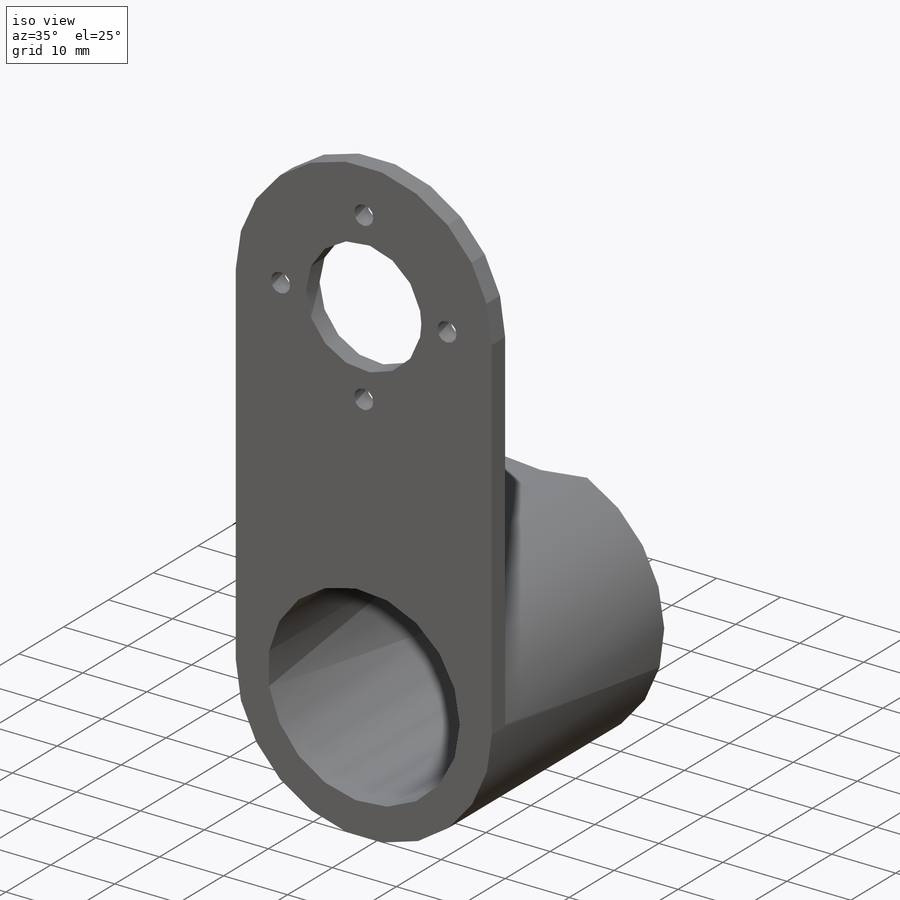
[diagram: iso view]
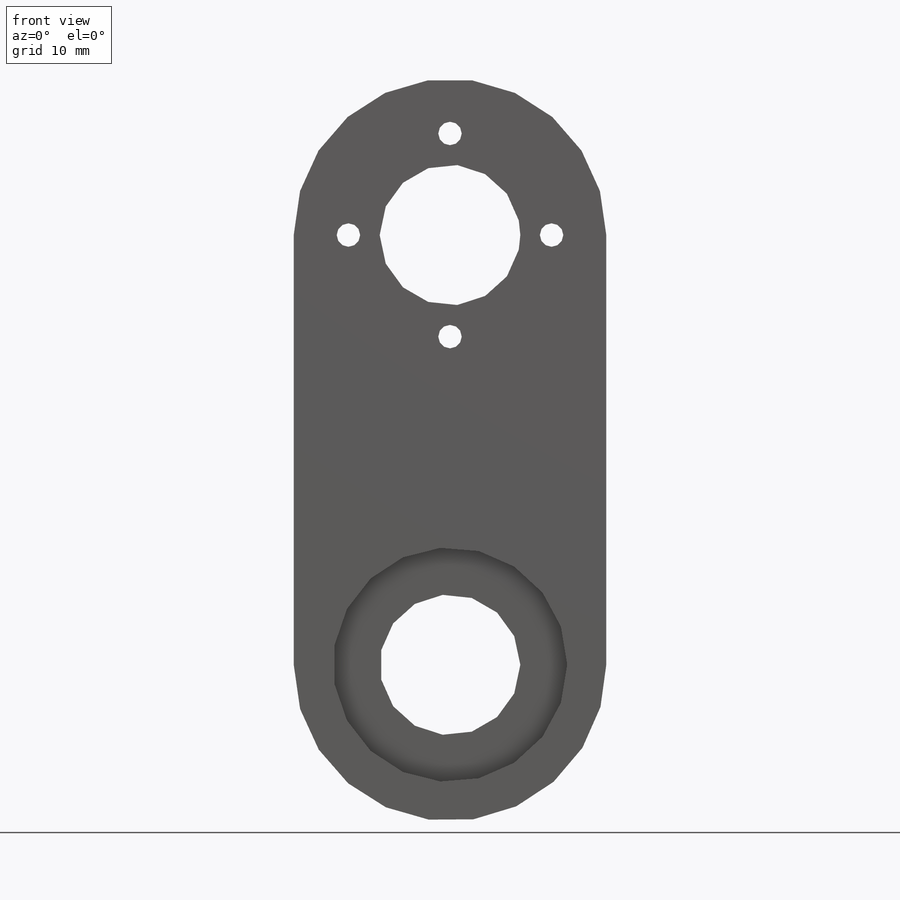
[diagram: front view]
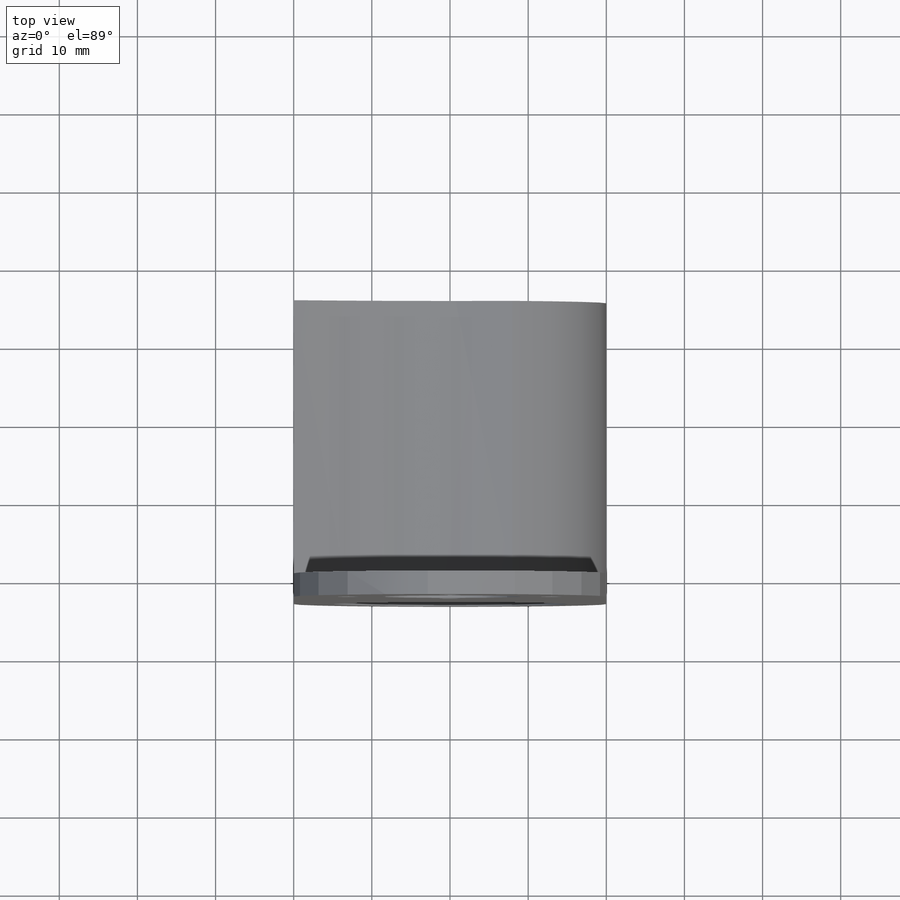
[diagram: top view]
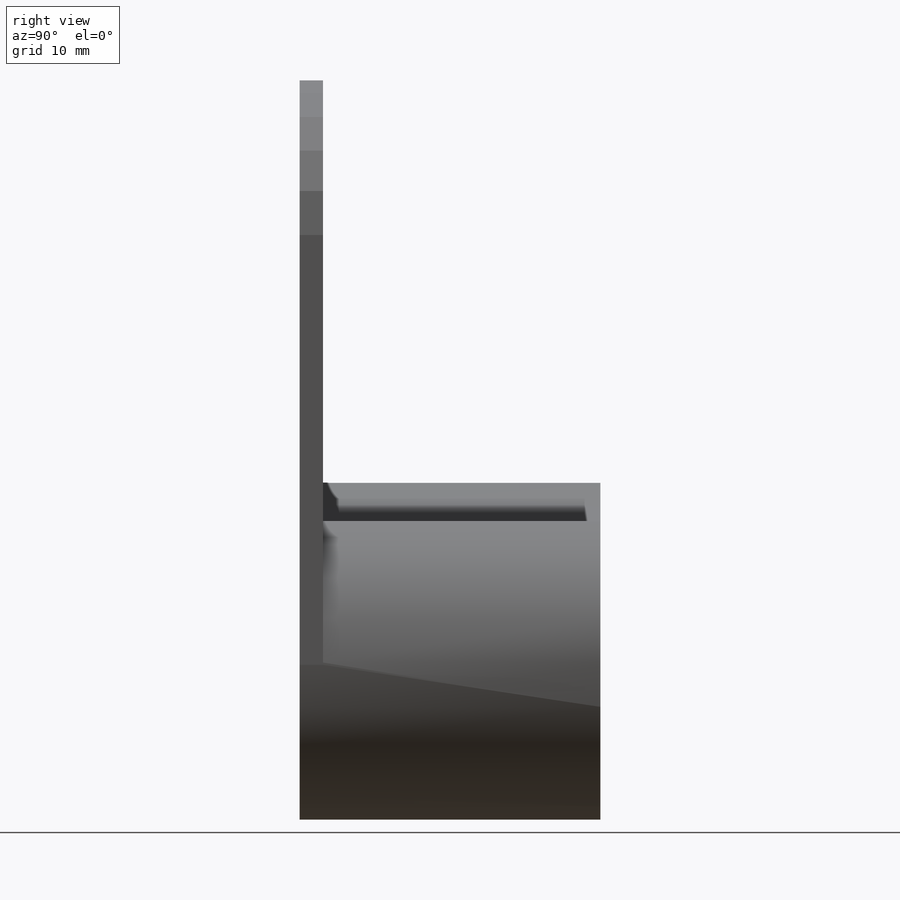
[diagram: right view]
SOLIDWORKS PART (.sldprt)
format: sldprt  version: not decoded by parser v0  size: 180,224 bytes
history: native  units: mm
features: plane x3, sketch x3, extrude x2, material x1, cut_extrude x1 (+9 scaffold rows collapsed)
feature tree (19):
  scaffold x9  (default folders/planes/origin — collapsed)
  material  "Material <not specified>"
  plane  "Face"
  plane  "Dessus"
  plane  "Droite"
  sketch  "Esquisse1"  dims[c1.D1=20.0mm c1.D3=18.0mm c1.D5=3.0mm c1.D7=18.0mm c1.D9=~11.510532mm c1.D16=3.0mm c1.D17=3.0mm c2.D7=~13.878312mm c2.D2=55.0mm c2.D4=26.0mm c2.D6=26.0mm c2.D8=10.0mm c2.D9=3.0mm c2.D10=5.0mm c2.D11=15.0mm c3.D11=45.0deg c3.D8=30.0mm c4.D8=30.0deg c5.D8=14.0mm c5.D9=14.0mm c5.D10=14.0mm c5.D11=14.0mm c5.D12=14.0mm c5.D13=14.0mm c5.D14=14.0mm c5.D15=14.0mm]
  extrude  "Extrusion1"  Depth=3mm
  sketch  "Esquisse2"  dims[D1=15.0mm]
  extrude  "Extrusion2"  Depth=38.5mm
  sketch  "Esquisse3"  dims[D1=~13.732218mm]
  cut_extrude  "Extrusion3"  Depth=34.5mm
decode coverage: 6 of 6 modeling features carry decoded parameters
note: ~ marks probable driven/reference dimensions
note: suppression state not decoded; provenance and decode notes live in map.json
